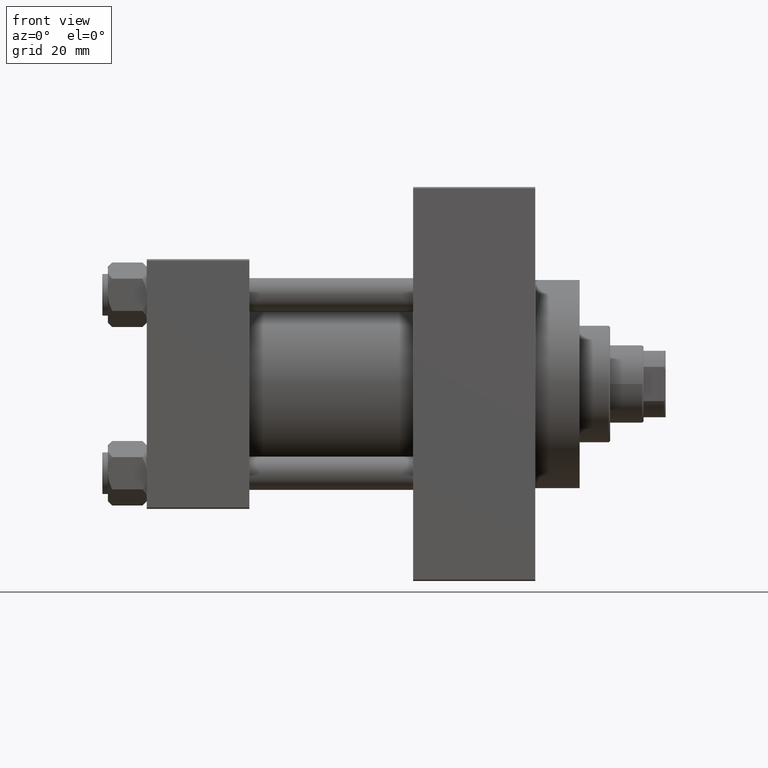
[diagram: clean part render]
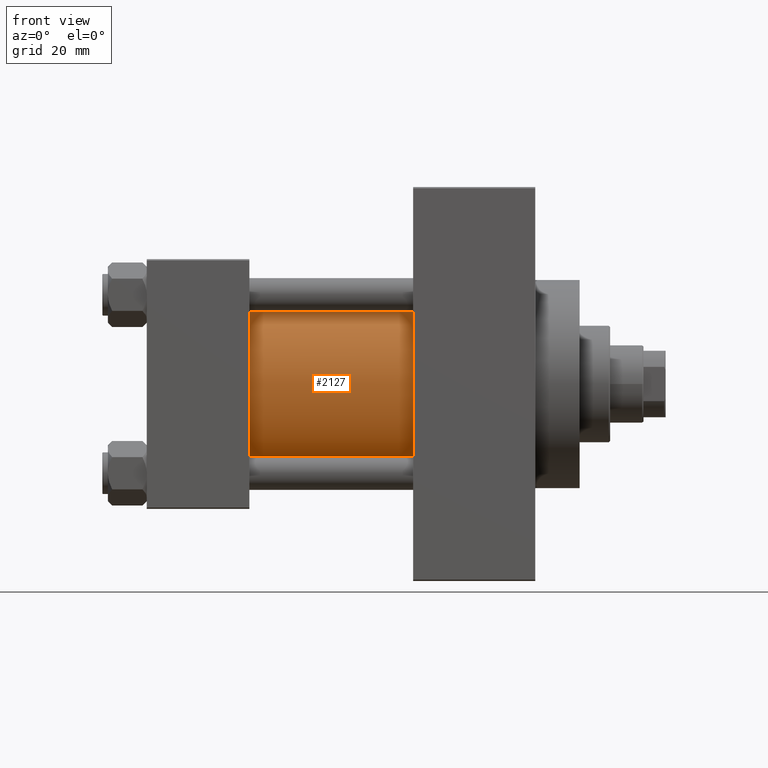
[diagram: same view with one face highlighted and labeled with its STEP entity id]
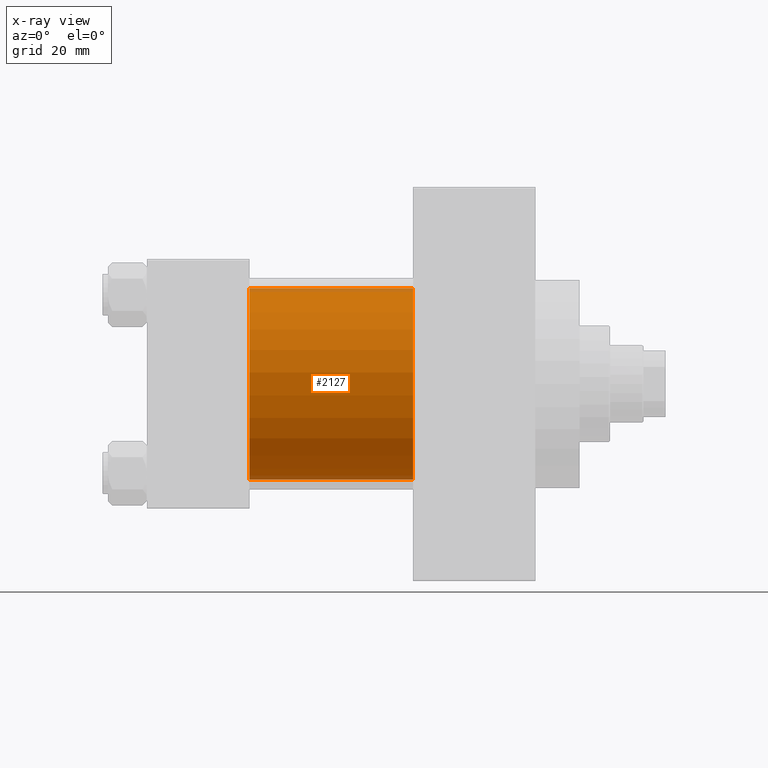
[diagram: x-ray of the same camera — body ghosted, the highlighted face saturated]
A machine part, front view. The second image highlights one B-rep face of the part: STEP entity #2127.
The next image is the same camera in x-ray: the body ghosted, the highlighted face saturated — about 4% of this face is hidden behind the body in this view.
In plain terms, the highlighted cylindrical surface (partial cylindrical patch) has radius 34.5 mm, axis along (-1, -0, -0).
Its self-contained STEP definition (entity closure, byte-faithful):
#195 = DIRECTION ( 'NONE',  ( 0.000000000000000000, 0.000000000000000000, -1.000000000000000000 ) ) ;
#2127 = ADVANCED_FACE ( 'NONE', ( #38347 ), #19242, .T. ) ;
#3775 = CARTESIAN_POINT ( 'NONE',  ( 96.00000000000000000, -2.602085213965210642E-15, 0.000000000000000000 ) ) ;
#4566 = VERTEX_POINT ( 'NONE', #21485 ) ;
#5460 = VECTOR ( 'NONE', #37296, 1000.000000000000000 ) ;
#6010 = AXIS2_PLACEMENT_3D ( 'NONE', #8736, #19951, #44800 ) ;
#6127 = AXIS2_PLACEMENT_3D ( 'NONE', #3775, #18333, #195 ) ;
#8000 = EDGE_CURVE ( 'NONE', #4566, #45215, #32098, .T. ) ;
#8736 = CARTESIAN_POINT ( 'NONE',  ( 96.00000000000000000, -2.602085213965210642E-15, 0.000000000000000000 ) ) ;
#9115 = LINE ( 'NONE', #34169, #5460 ) ;
#14513 = CARTESIAN_POINT ( 'NONE',  ( 96.00000000000000000, -2.602085213965210642E-15, 34.50000000000000000 ) ) ;
#16228 = CARTESIAN_POINT ( 'NONE',  ( 37.00000000000000000, 1.622946243093158675E-15, -34.50000000000000000 ) ) ;
#18333 = DIRECTION ( 'NONE',  ( 1.000000000000000000, 0.000000000000000000, 0.000000000000000000 ) ) ;
#18338 = VERTEX_POINT ( 'NONE', #24064 ) ;
#19242 = CYLINDRICAL_SURFACE ( 'NONE', #6010, 34.50000000000000000 ) ;
#19951 = DIRECTION ( 'NONE',  ( -1.000000000000000000, -0.000000000000000000, -0.000000000000000000 ) ) ;
#21485 = CARTESIAN_POINT ( 'NONE',  ( 37.00000000000000000, -2.602085213965210642E-15, 34.50000000000000000 ) ) ;
#22716 = VERTEX_POINT ( 'NONE', #27724 ) ;
#23155 = ORIENTED_EDGE ( 'NONE', *, *, #45365, .T. ) ;
#23711 = AXIS2_PLACEMENT_3D ( 'NONE', #26065, #40402, #36577 ) ;
#24064 = CARTESIAN_POINT ( 'NONE',  ( 96.00000000000000000, 1.622946243093158675E-15, -34.50000000000000000 ) ) ;
#26065 = CARTESIAN_POINT ( 'NONE',  ( 37.00000000000000000, -2.602085213965210642E-15, 0.000000000000000000 ) ) ;
#26227 = ORIENTED_EDGE ( 'NONE', *, *, #8000, .T. ) ;
#26666 = CIRCLE ( 'NONE', #6127, 34.50000000000000000 ) ;
#27724 = CARTESIAN_POINT ( 'NONE',  ( 96.00000000000000000, -2.602085213965210642E-15, 34.50000000000000000 ) ) ;
#31460 = VECTOR ( 'NONE', #33359, 1000.000000000000000 ) ;
#32098 = CIRCLE ( 'NONE', #23711, 34.50000000000000000 ) ;
#32641 = LINE ( 'NONE', #14513, #31460 ) ;
#33359 = DIRECTION ( 'NONE',  ( -1.000000000000000000, -0.000000000000000000, -0.000000000000000000 ) ) ;
#34169 = CARTESIAN_POINT ( 'NONE',  ( 96.00000000000000000, 1.622946243093158675E-15, -34.50000000000000000 ) ) ;
#36490 = EDGE_CURVE ( 'NONE', #22716, #18338, #26666, .T. ) ;
#36577 = DIRECTION ( 'NONE',  ( 0.000000000000000000, 0.000000000000000000, 1.000000000000000000 ) ) ;
#36851 = ORIENTED_EDGE ( 'NONE', *, *, #43844, .F. ) ;
#37296 = DIRECTION ( 'NONE',  ( -1.000000000000000000, -0.000000000000000000, -0.000000000000000000 ) ) ;
#38347 = FACE_OUTER_BOUND ( 'NONE', #42685, .T. ) ;
#40402 = DIRECTION ( 'NONE',  ( 1.000000000000000000, -0.000000000000000000, 0.000000000000000000 ) ) ;
#42685 = EDGE_LOOP ( 'NONE', ( #36851, #44743, #23155, #26227 ) ) ;
#43844 = EDGE_CURVE ( 'NONE', #18338, #45215, #9115, .T. ) ;
#44743 = ORIENTED_EDGE ( 'NONE', *, *, #36490, .F. ) ;
#44800 = DIRECTION ( 'NONE',  ( 0.000000000000000000, 0.000000000000000000, 1.000000000000000000 ) ) ;
#45215 = VERTEX_POINT ( 'NONE', #16228 ) ;
#45365 = EDGE_CURVE ( 'NONE', #22716, #4566, #32641, .T. ) ;